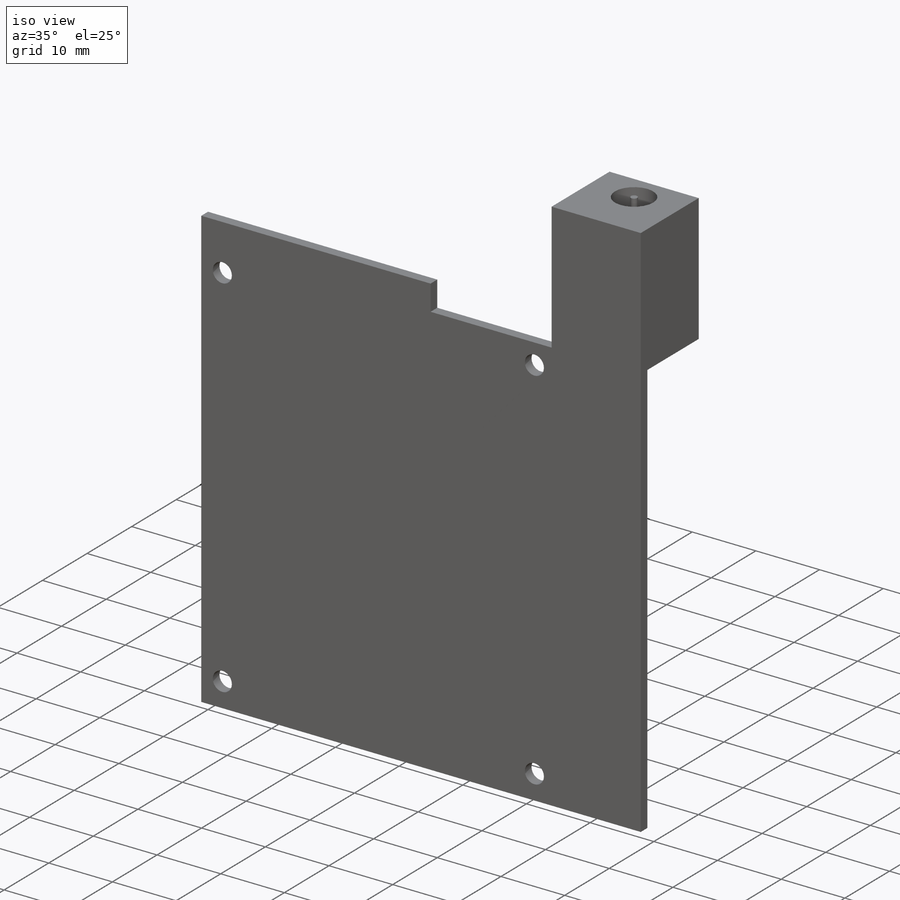
[diagram: iso view]
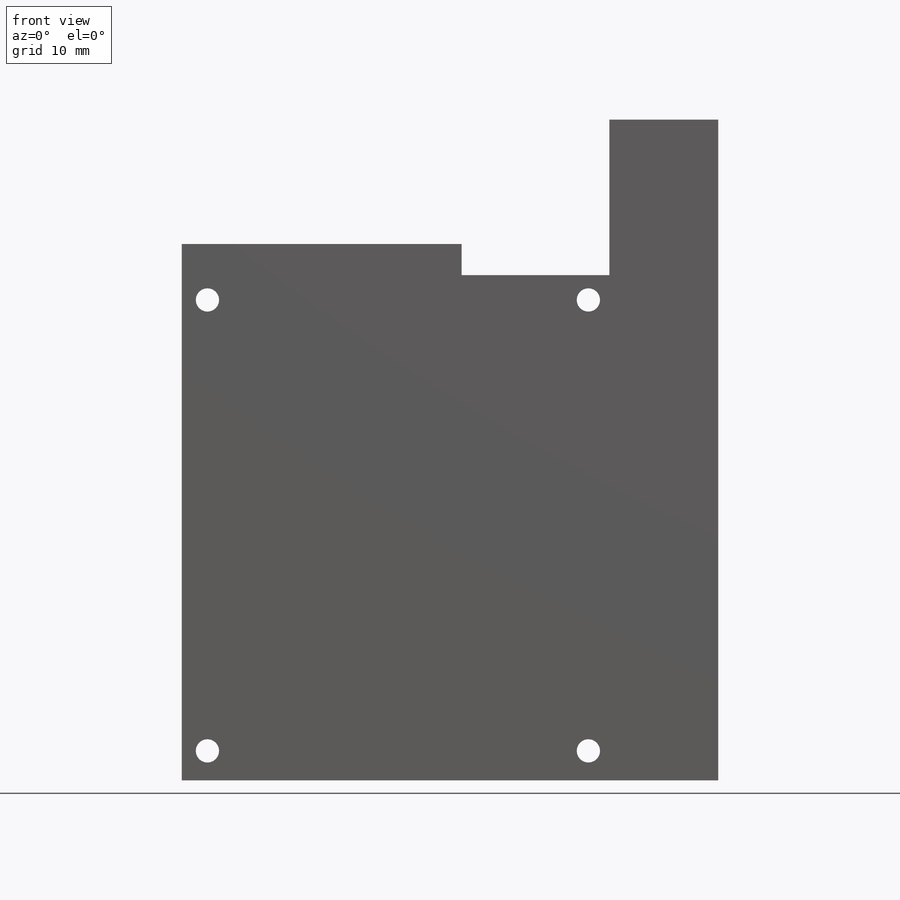
[diagram: front view]
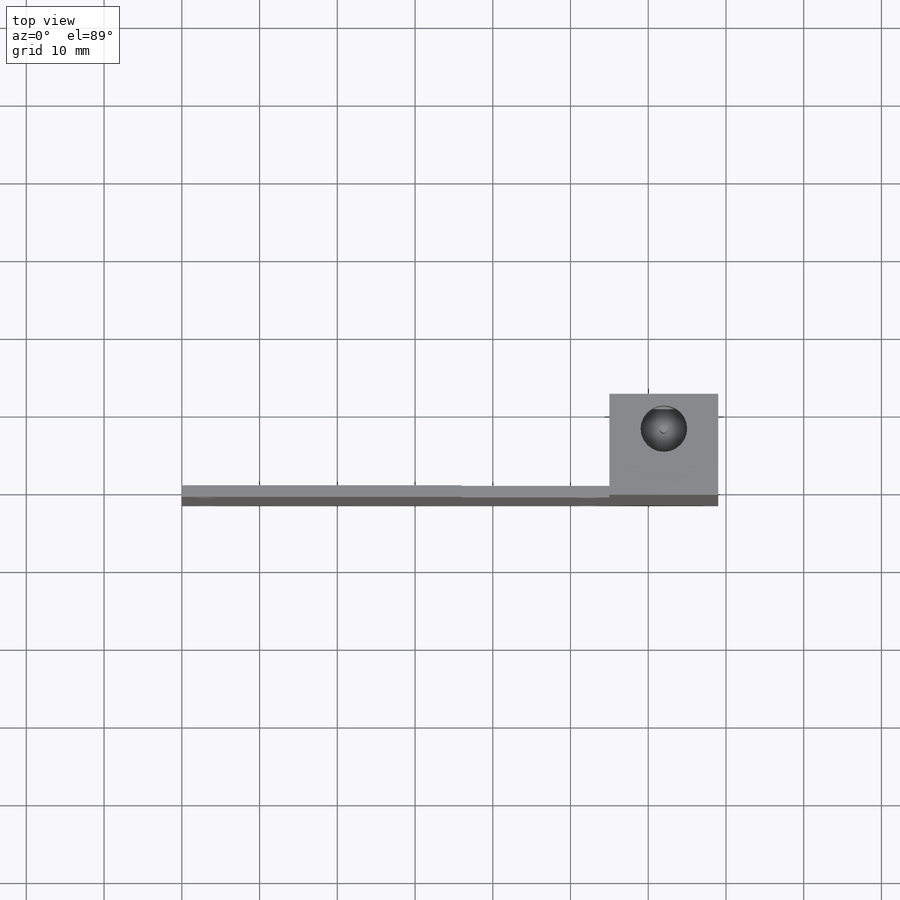
[diagram: top view]
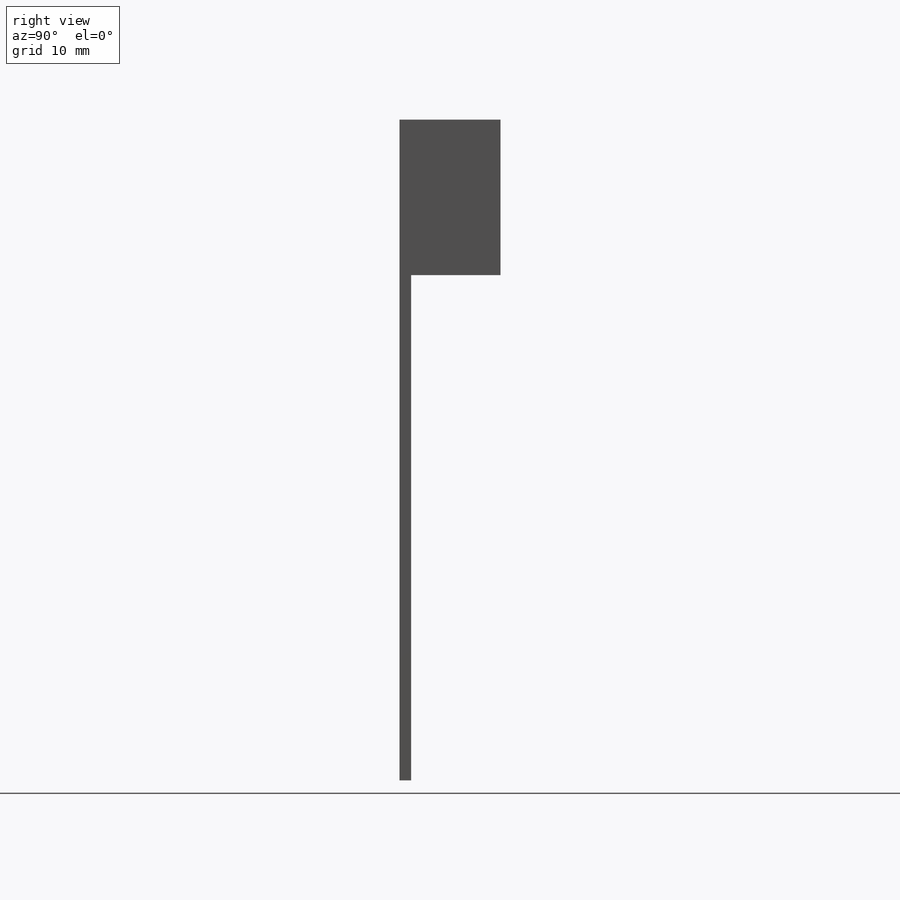
[diagram: right view]
SOLIDWORKS PART (.sldprt)
format: sldprt  version: not decoded by parser v0  size: 183,808 bytes
history: native  units: mm
features: sketch x3, extrude x2, material x1, cut_extrude x1 (+13 scaffold rows collapsed)
feature tree (20):
  scaffold x13  (default folders/planes/origin — collapsed)
  material  "Material <not specified>"
  sketch  "Sketch1"  dims[c1.D7=~6.333479mm c1.D10=3.0mm c1.D1=~97.423326mm c1.D2=~110.456547mm c2.D1=~23.459798mm c2.D2=~64.514443mm c3.D1=~35.841357mm c3.D2=~21.504814mm c4.D1=85.0mm c4.D2=69.0mm c4.D3=14.0mm c4.D4=19.0mm c4.D5=4.0mm c4.D6=20.0mm c4.D7=27.8mm c4.D8=3.3mm c4.D9=3.8mm c4.D11=32.8mm c4.D12=~5.830808mm]
  extrude  "Boss-Extrude1"  Depth=1.5mm
  extrude  "Boss-Extrude2"  [1 undecoded]
  sketch  "Sketch1<3>"  dims[D1=11.5mm]
  sketch  "Sketch2"  dims[c1.D1=~8.111176mm c1.D2=6.0mm c1.D3=1.0mm c2.D1=8.5mm]
  cut_extrude  "Cut-Extrude1"  Depth=10mm
decode coverage: 5 of 6 modeling features carry decoded parameters
note: ~ marks probable driven/reference dimensions
note: 1 parameter value undecoded
note: suppression state not decoded; provenance and decode notes live in map.json
